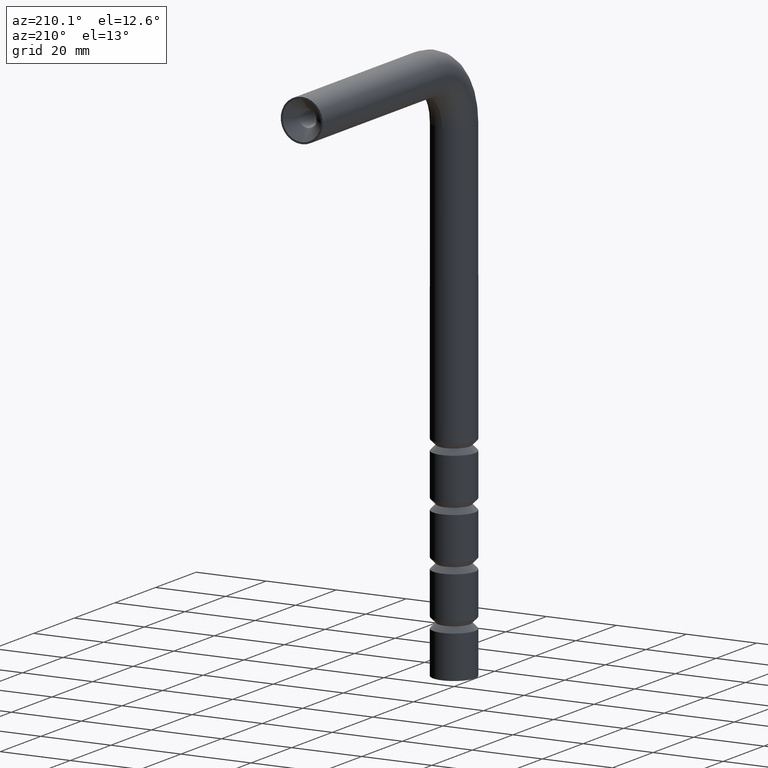
[diagram: clean part render]
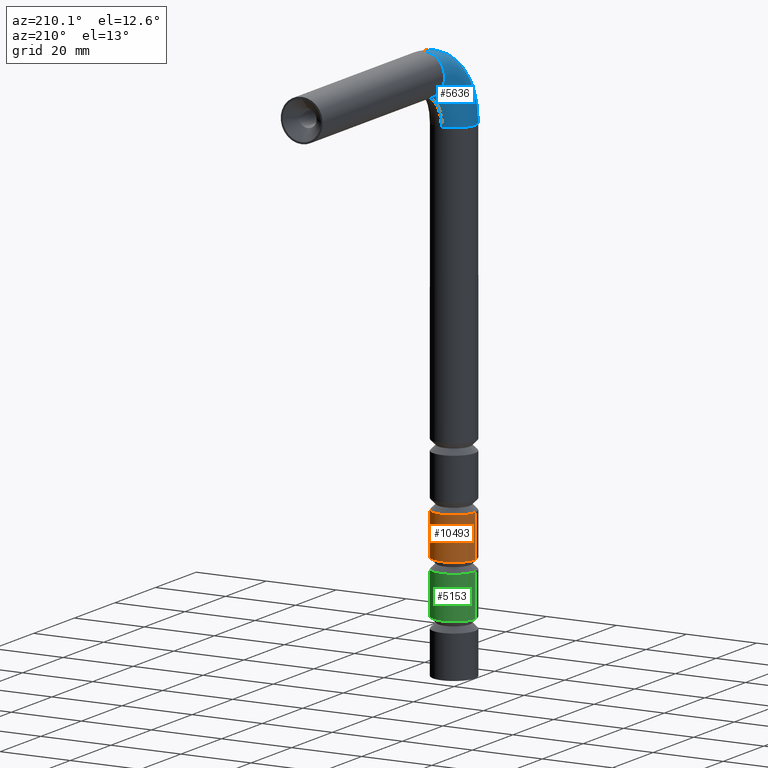
[diagram: same view with three faces highlighted in distinct colors, each labeled with its STEP entity id]
A machine part, auxiliary view with three faces highlighted in distinct colors.
Their STEP definitions:

[orange] entity #10493 — the highlighted cylindrical surface (edge-blend (fillet) strip) has radius 6 mm, axis along (0, 0, -1).
#827 = FACE_OUTER_BOUND ( 'NONE', #3100, .T. ) ;
#912 = ORIENTED_EDGE ( 'NONE', *, *, #10265, .T. ) ;
#1211 = DIRECTION ( 'NONE',  ( 0.000000000000000000, 0.000000000000000000, -1.000000000000000000 ) ) ;
#1966 = LINE ( 'NONE', #11354, #11045 ) ;
#2152 = EDGE_CURVE ( 'NONE', #8062, #7243, #1966, .T. ) ;
#2538 = CARTESIAN_POINT ( 'NONE',  ( -5.999999999999895195, 0.000000000000000000, 30.00000000000000000 ) ) ;
#2908 = DIRECTION ( 'NONE',  ( 0.000000000000000000, 0.000000000000000000, -1.000000000000000000 ) ) ;
#3100 = EDGE_LOOP ( 'NONE', ( #912, #8926, #9870, #9780 ) ) ;
#3517 = CIRCLE ( 'NONE', #8848, 5.999999999999790390 ) ;
#3606 = CARTESIAN_POINT ( 'NONE',  ( 0.000000000000000000, 0.000000000000000000, 41.99999999999999289 ) ) ;
#3741 = CARTESIAN_POINT ( 'NONE',  ( 5.999999999999895195, 7.347880794884055641E-16, 30.00000000000000000 ) ) ;
#4715 = DIRECTION ( 'NONE',  ( -0.000000000000000000, -0.000000000000000000, -1.000000000000000000 ) ) ;
#4981 = DIRECTION ( 'NONE',  ( -1.000000000000000000, 0.000000000000000000, 0.000000000000000000 ) ) ;
#4991 = AXIS2_PLACEMENT_3D ( 'NONE', #6899, #10869, #11887 ) ;
#5421 = AXIS2_PLACEMENT_3D ( 'NONE', #13057, #2908, #4981 ) ;
#6899 = CARTESIAN_POINT ( 'NONE',  ( 0.000000000000000000, 0.000000000000000000, 30.00000000000000000 ) ) ;
#6965 = VERTEX_POINT ( 'NONE', #3741 ) ;
#7243 = VERTEX_POINT ( 'NONE', #2538 ) ;
#7375 = CARTESIAN_POINT ( 'NONE',  ( -5.999999999999790390, 0.000000000000000000, 41.99999999999999289 ) ) ;
#8062 = VERTEX_POINT ( 'NONE', #7375 ) ;
#8266 = CARTESIAN_POINT ( 'NONE',  ( 6.000000000000000888, 7.347880794884120722E-16, 140.0000000000000000 ) ) ;
#8848 = AXIS2_PLACEMENT_3D ( 'NONE', #3606, #4715, #11922 ) ;
#8926 = ORIENTED_EDGE ( 'NONE', *, *, #9174, .T. ) ;
#9174 = EDGE_CURVE ( 'NONE', #11214, #6965, #9743, .T. ) ;
#9283 = DIRECTION ( 'NONE',  ( 0.000000000000000000, 0.000000000000000000, -1.000000000000000000 ) ) ;
#9743 = LINE ( 'NONE', #8266, #12131 ) ;
#9780 = ORIENTED_EDGE ( 'NONE', *, *, #2152, .F. ) ;
#9870 = ORIENTED_EDGE ( 'NONE', *, *, #11806, .F. ) ;
#10204 = CYLINDRICAL_SURFACE ( 'NONE', #5421, 6.000000000000000888 ) ;
#10265 = EDGE_CURVE ( 'NONE', #8062, #11214, #3517, .T. ) ;
#10493 = ADVANCED_FACE ( 'NONE', ( #827 ), #10204, .T. ) ;
#10869 = DIRECTION ( 'NONE',  ( -0.000000000000000000, -0.000000000000000000, -1.000000000000000000 ) ) ;
#11045 = VECTOR ( 'NONE', #1211, 1000.000000000000000 ) ;
#11214 = VERTEX_POINT ( 'NONE', #12669 ) ;
#11305 = CIRCLE ( 'NONE', #4991, 5.999999999999895195 ) ;
#11354 = CARTESIAN_POINT ( 'NONE',  ( -6.000000000000000888, 0.000000000000000000, 140.0000000000000000 ) ) ;
#11806 = EDGE_CURVE ( 'NONE', #7243, #6965, #11305, .T. ) ;
#11887 = DIRECTION ( 'NONE',  ( -1.000000000000000000, 0.000000000000000000, 0.000000000000000000 ) ) ;
#11922 = DIRECTION ( 'NONE',  ( -1.000000000000000000, 0.000000000000000000, 0.000000000000000000 ) ) ;
#12131 = VECTOR ( 'NONE', #9283, 1000.000000000000000 ) ;
#12669 = CARTESIAN_POINT ( 'NONE',  ( 5.999999999999790390, 7.347880794883862370E-16, 41.99999999999999289 ) ) ;
#13057 = CARTESIAN_POINT ( 'NONE',  ( 0.000000000000000000, 0.000000000000000000, 140.0000000000000000 ) ) ;

[blue] entity #5636 — the highlighted toroidal blend (fillet) surface has major radius 15 mm and minor (blend) radius 6 mm.
#1051 = ORIENTED_EDGE ( 'NONE', *, *, #5214, .F. ) ;
#1636 = DIRECTION ( 'NONE',  ( 0.000000000000000000, 0.000000000000000000, 1.000000000000000000 ) ) ;
#2089 = DIRECTION ( 'NONE',  ( 0.000000000000000000, 0.000000000000000000, 1.000000000000000000 ) ) ;
#2180 = DIRECTION ( 'NONE',  ( 1.000000000000000000, 0.000000000000000000, 0.000000000000000000 ) ) ;
#2276 = CARTESIAN_POINT ( 'NONE',  ( -6.000000000000000888, 0.000000000000000000, 140.0000000000000000 ) ) ;
#2888 = AXIS2_PLACEMENT_3D ( 'NONE', #4352, #6226, #5248 ) ;
#2901 = CARTESIAN_POINT ( 'NONE',  ( -7.347880794884123680E-16, 5.999999999999993783, 140.0000000000000000 ) ) ;
#2939 = VERTEX_POINT ( 'NONE', #8490 ) ;
#3089 = FACE_OUTER_BOUND ( 'NONE', #5004, .T. ) ;
#3219 = AXIS2_PLACEMENT_3D ( 'NONE', #8474, #8522, #10384 ) ;
#3357 = CIRCLE ( 'NONE', #11231, 6.000000000000000888 ) ;
#3486 = DIRECTION ( 'NONE',  ( 1.000000000000000000, 0.000000000000000000, 0.000000000000000000 ) ) ;
#3808 = AXIS2_PLACEMENT_3D ( 'NONE', #12528, #4370, #7442 ) ;
#4352 = CARTESIAN_POINT ( 'NONE',  ( 0.000000000000000000, 15.00000000000000000, 140.0000000000000000 ) ) ;
#4370 = DIRECTION ( 'NONE',  ( 1.000000000000000000, 0.000000000000000000, -0.000000000000000000 ) ) ;
#4639 = CARTESIAN_POINT ( 'NONE',  ( 0.000000000000000000, -6.938893903907228378E-15, 140.0000000000000000 ) ) ;
#4667 = DIRECTION ( 'NONE',  ( 0.000000000000000000, 0.000000000000000000, -1.000000000000000000 ) ) ;
#4709 = EDGE_CURVE ( 'NONE', #10405, #12911, #6777, .T. ) ;
#5004 = EDGE_LOOP ( 'NONE', ( #1051, #12580, #8240, #8716, #5309 ) ) ;
#5214 = EDGE_CURVE ( 'NONE', #2939, #6898, #12976, .T. ) ;
#5248 = DIRECTION ( 'NONE',  ( 0.000000000000000000, 0.000000000000000000, -1.000000000000000000 ) ) ;
#5309 = ORIENTED_EDGE ( 'NONE', *, *, #7666, .T. ) ;
#5636 = ADVANCED_FACE ( 'NONE', ( #3089 ), #10570, .T. ) ;
#5675 = VERTEX_POINT ( 'NONE', #12451 ) ;
#5792 = AXIS2_PLACEMENT_3D ( 'NONE', #9161, #2089, #2180 ) ;
#6226 = DIRECTION ( 'NONE',  ( 1.000000000000000000, 0.000000000000000000, -0.000000000000000000 ) ) ;
#6544 = CARTESIAN_POINT ( 'NONE',  ( 0.000000000000000000, -6.000000000000012434, 140.0000000000000000 ) ) ;
#6575 = EDGE_CURVE ( 'NONE', #5675, #2939, #12290, .T. ) ;
#6777 = CIRCLE ( 'NONE', #5792, 6.000000000000000888 ) ;
#6898 = VERTEX_POINT ( 'NONE', #6544 ) ;
#7442 = DIRECTION ( 'NONE',  ( 0.000000000000000000, 0.000000000000000000, -1.000000000000000000 ) ) ;
#7666 = EDGE_CURVE ( 'NONE', #12911, #6898, #3357, .T. ) ;
#7880 = CARTESIAN_POINT ( 'NONE',  ( -7.347880794884120722E-16, 15.00000000000000000, 140.0000000000000000 ) ) ;
#8240 = ORIENTED_EDGE ( 'NONE', *, *, #9045, .T. ) ;
#8474 = CARTESIAN_POINT ( 'NONE',  ( 0.000000000000000000, 15.00000000000000000, 155.0000000000000284 ) ) ;
#8490 = CARTESIAN_POINT ( 'NONE',  ( 7.347880794884114806E-16, 15.00000000000000355, 161.0000000000000284 ) ) ;
#8522 = DIRECTION ( 'NONE',  ( 0.000000000000000000, 1.000000000000000000, -4.625929269271485914E-16 ) ) ;
#8716 = ORIENTED_EDGE ( 'NONE', *, *, #4709, .T. ) ;
#9045 = EDGE_CURVE ( 'NONE', #5675, #10405, #10063, .T. ) ;
#9161 = CARTESIAN_POINT ( 'NONE',  ( 0.000000000000000000, -6.938893903907228378E-15, 140.0000000000000000 ) ) ;
#10063 = CIRCLE ( 'NONE', #12253, 9.000000000000007105 ) ;
#10384 = DIRECTION ( 'NONE',  ( 1.000000000000000000, 0.000000000000000000, 0.000000000000000000 ) ) ;
#10405 = VERTEX_POINT ( 'NONE', #2901 ) ;
#10570 = TOROIDAL_SURFACE ( 'NONE', #2888, 15.00000000000001421, 6.000000000000000888 ) ;
#11231 = AXIS2_PLACEMENT_3D ( 'NONE', #4639, #1636, #3486 ) ;
#11885 = DIRECTION ( 'NONE',  ( 1.000000000000000000, 0.000000000000000000, -0.000000000000000000 ) ) ;
#12253 = AXIS2_PLACEMENT_3D ( 'NONE', #7880, #11885, #4667 ) ;
#12290 = CIRCLE ( 'NONE', #3219, 6.000000000000000888 ) ;
#12451 = CARTESIAN_POINT ( 'NONE',  ( 0.000000000000000000, 14.99999999999999645, 149.0000000000000284 ) ) ;
#12528 = CARTESIAN_POINT ( 'NONE',  ( 0.000000000000000000, 15.00000000000000000, 140.0000000000000000 ) ) ;
#12580 = ORIENTED_EDGE ( 'NONE', *, *, #6575, .F. ) ;
#12911 = VERTEX_POINT ( 'NONE', #2276 ) ;
#12976 = CIRCLE ( 'NONE', #3808, 21.00000000000001776 ) ;

[green] entity #5153 — the highlighted cylindrical surface (edge-blend (fillet) strip) has radius 6 mm, axis along (0, 0, -1).
#413 = ORIENTED_EDGE ( 'NONE', *, *, #8289, .T. ) ;
#549 = VECTOR ( 'NONE', #4665, 1000.000000000000000 ) ;
#854 = LINE ( 'NONE', #9666, #12141 ) ;
#859 = CARTESIAN_POINT ( 'NONE',  ( 6.000000000000000000, 7.347880794884120722E-16, 15.00000000000000000 ) ) ;
#1248 = AXIS2_PLACEMENT_3D ( 'NONE', #6197, #2386, #1402 ) ;
#1402 = DIRECTION ( 'NONE',  ( -1.000000000000000000, 0.000000000000000000, 0.000000000000000000 ) ) ;
#1534 = ORIENTED_EDGE ( 'NONE', *, *, #5835, .F. ) ;
#2256 = EDGE_CURVE ( 'NONE', #7088, #2545, #854, .T. ) ;
#2288 = AXIS2_PLACEMENT_3D ( 'NONE', #7027, #4972, #13138 ) ;
#2386 = DIRECTION ( 'NONE',  ( 0.000000000000000000, 0.000000000000000000, -1.000000000000000000 ) ) ;
#2545 = VERTEX_POINT ( 'NONE', #859 ) ;
#3380 = DIRECTION ( 'NONE',  ( 0.000000000000000000, 0.000000000000000000, -1.000000000000000000 ) ) ;
#3790 = CARTESIAN_POINT ( 'NONE',  ( -6.000000000000000000, 0.000000000000000000, 15.00000000000000000 ) ) ;
#4150 = CARTESIAN_POINT ( 'NONE',  ( -5.999999999999895195, 0.000000000000000000, 27.00000000000000000 ) ) ;
#4665 = DIRECTION ( 'NONE',  ( 0.000000000000000000, 0.000000000000000000, -1.000000000000000000 ) ) ;
#4802 = CARTESIAN_POINT ( 'NONE',  ( 0.000000000000000000, 0.000000000000000000, 15.00000000000000000 ) ) ;
#4972 = DIRECTION ( 'NONE',  ( -0.000000000000000000, -0.000000000000000000, -1.000000000000000000 ) ) ;
#5153 = ADVANCED_FACE ( 'NONE', ( #10907 ), #7219, .T. ) ;
#5796 = DIRECTION ( 'NONE',  ( -1.000000000000000000, 0.000000000000000000, 0.000000000000000000 ) ) ;
#5835 = EDGE_CURVE ( 'NONE', #7540, #8313, #8664, .T. ) ;
#5904 = EDGE_CURVE ( 'NONE', #8313, #2545, #11054, .T. ) ;
#5983 = EDGE_LOOP ( 'NONE', ( #413, #10576, #8388, #1534 ) ) ;
#6197 = CARTESIAN_POINT ( 'NONE',  ( 0.000000000000000000, 0.000000000000000000, 140.0000000000000000 ) ) ;
#6722 = DIRECTION ( 'NONE',  ( -0.000000000000000000, -0.000000000000000000, -1.000000000000000000 ) ) ;
#7027 = CARTESIAN_POINT ( 'NONE',  ( 0.000000000000000000, 0.000000000000000000, 27.00000000000000000 ) ) ;
#7088 = VERTEX_POINT ( 'NONE', #7883 ) ;
#7219 = CYLINDRICAL_SURFACE ( 'NONE', #1248, 6.000000000000000888 ) ;
#7540 = VERTEX_POINT ( 'NONE', #4150 ) ;
#7883 = CARTESIAN_POINT ( 'NONE',  ( 5.999999999999895195, 7.347880794883991546E-16, 27.00000000000000000 ) ) ;
#7907 = AXIS2_PLACEMENT_3D ( 'NONE', #4802, #6722, #5796 ) ;
#8289 = EDGE_CURVE ( 'NONE', #7540, #7088, #11640, .T. ) ;
#8313 = VERTEX_POINT ( 'NONE', #3790 ) ;
#8388 = ORIENTED_EDGE ( 'NONE', *, *, #5904, .F. ) ;
#8664 = LINE ( 'NONE', #11650, #549 ) ;
#9666 = CARTESIAN_POINT ( 'NONE',  ( 6.000000000000000888, 7.347880794884120722E-16, 140.0000000000000000 ) ) ;
#10576 = ORIENTED_EDGE ( 'NONE', *, *, #2256, .T. ) ;
#10907 = FACE_OUTER_BOUND ( 'NONE', #5983, .T. ) ;
#11054 = CIRCLE ( 'NONE', #7907, 6.000000000000000000 ) ;
#11640 = CIRCLE ( 'NONE', #2288, 5.999999999999895195 ) ;
#11650 = CARTESIAN_POINT ( 'NONE',  ( -6.000000000000000888, 0.000000000000000000, 140.0000000000000000 ) ) ;
#12141 = VECTOR ( 'NONE', #3380, 1000.000000000000000 ) ;
#13138 = DIRECTION ( 'NONE',  ( -1.000000000000000000, 0.000000000000000000, 0.000000000000000000 ) ) ;